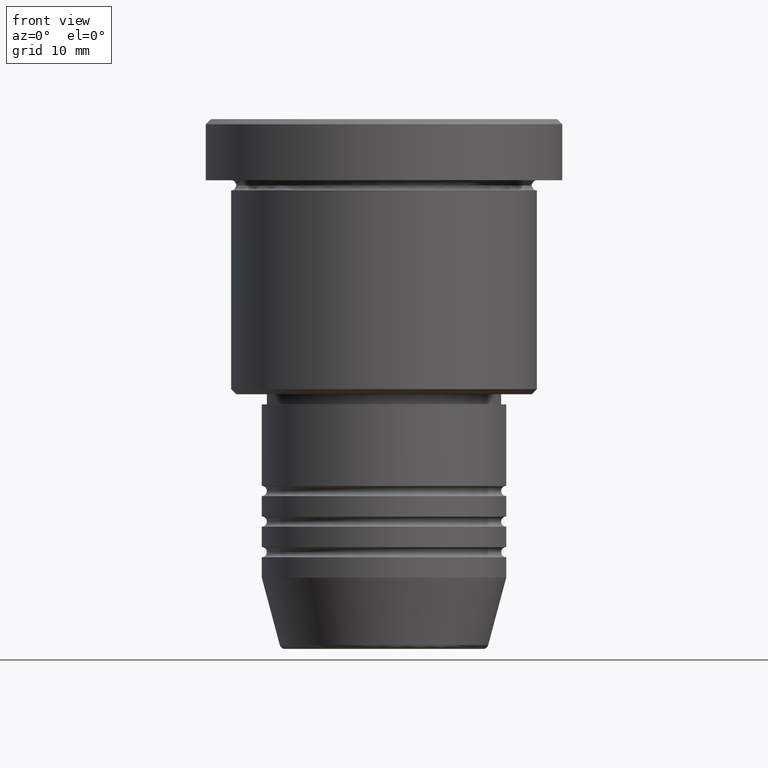
[diagram: clean part render]
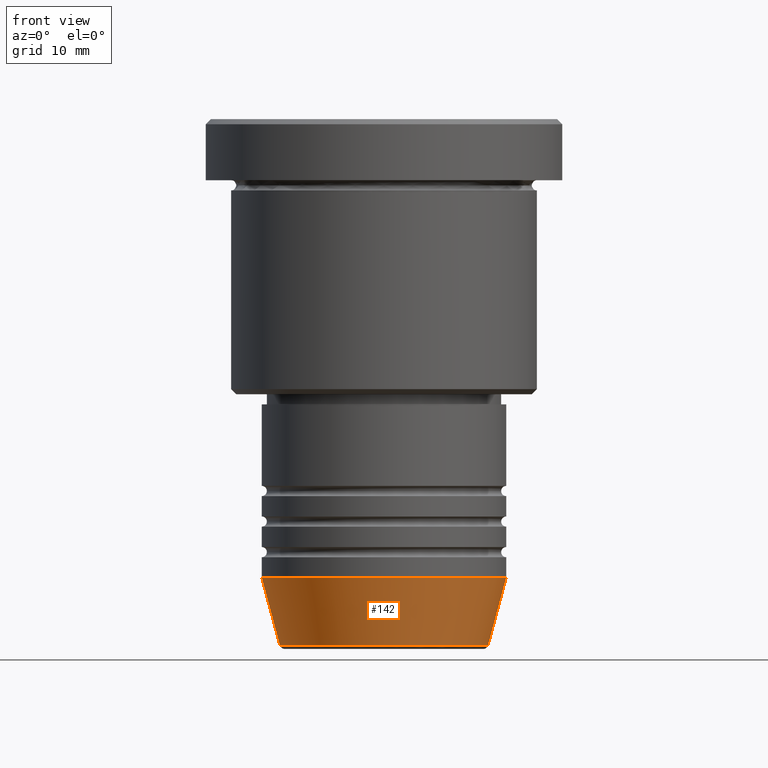
[diagram: same view with one face highlighted and labeled with its STEP entity id]
A machine part, front view. The second image highlights one B-rep face of the part: STEP entity #142.
In plain terms, the highlighted conical surface has half-angle 15 deg.
Its self-contained STEP definition (entity closure, byte-faithful):
#12 = ORIENTED_EDGE ( 'NONE', *, *, #193, .F. ) ;
#39 = DIRECTION ( 'NONE',  ( -0.000000000000000000, -0.000000000000000000, 1.000000000000000000 ) ) ;
#55 = LINE ( 'NONE', #686, #856 ) ;
#105 = ORIENTED_EDGE ( 'NONE', *, *, #173, .T. ) ;
#107 = CARTESIAN_POINT ( 'NONE',  ( 12.00000000000000000, 0.000000000000000000, -45.00000000000000000 ) ) ;
#123 = EDGE_LOOP ( 'NONE', ( #593, #105, #264, #12 ) ) ;
#142 = ADVANCED_FACE ( 'NONE', ( #788 ), #203, .T. ) ;
#165 = CIRCLE ( 'NONE', #325, 10.22365507213718949 ) ;
#173 = EDGE_CURVE ( 'NONE', #182, #606, #165, .T. ) ;
#182 = VERTEX_POINT ( 'NONE', #1040 ) ;
#193 = EDGE_CURVE ( 'NONE', #1146, #321, #421, .T. ) ;
#203 = CONICAL_SURFACE ( 'NONE', #925, 12.00000000000000000, 0.2617993877991500740 ) ;
#251 = CARTESIAN_POINT ( 'NONE',  ( 10.22365507213718949, 0.000000000000000000, -51.62940952255126348 ) ) ;
#264 = ORIENTED_EDGE ( 'NONE', *, *, #649, .T. ) ;
#287 = VECTOR ( 'NONE', #466, 1000.000000000000000 ) ;
#321 = VERTEX_POINT ( 'NONE', #1071 ) ;
#325 = AXIS2_PLACEMENT_3D ( 'NONE', #1150, #39, #870 ) ;
#338 = DIRECTION ( 'NONE',  ( -0.000000000000000000, -0.000000000000000000, 1.000000000000000000 ) ) ;
#421 = CIRCLE ( 'NONE', #813, 12.00000000000000000 ) ;
#429 = CARTESIAN_POINT ( 'NONE',  ( 0.000000000000000000, 0.000000000000000000, -45.00000000000000000 ) ) ;
#466 = DIRECTION ( 'NONE',  ( 0.2588190451025213501, 0.000000000000000000, 0.9659258262890680902 ) ) ;
#593 = ORIENTED_EDGE ( 'NONE', *, *, #1074, .F. ) ;
#606 = VERTEX_POINT ( 'NONE', #251 ) ;
#647 = CARTESIAN_POINT ( 'NONE',  ( -12.00000000000000000, 1.469576158976823947E-15, -45.00000000000000000 ) ) ;
#649 = EDGE_CURVE ( 'NONE', #606, #321, #1092, .T. ) ;
#686 = CARTESIAN_POINT ( 'NONE',  ( -12.00000000000000000, 1.469576158976823947E-15, -45.00000000000000000 ) ) ;
#689 = CARTESIAN_POINT ( 'NONE',  ( 0.000000000000000000, 0.000000000000000000, -45.00000000000000000 ) ) ;
#691 = DIRECTION ( 'NONE',  ( -0.2588190451025213501, 3.169619151431772337E-17, 0.9659258262890680902 ) ) ;
#693 = DIRECTION ( 'NONE',  ( 1.000000000000000000, 0.000000000000000000, 0.000000000000000000 ) ) ;
#788 = FACE_OUTER_BOUND ( 'NONE', #123, .T. ) ;
#813 = AXIS2_PLACEMENT_3D ( 'NONE', #429, #338, #693 ) ;
#856 = VECTOR ( 'NONE', #691, 1000.000000000000000 ) ;
#870 = DIRECTION ( 'NONE',  ( 1.000000000000000000, 0.000000000000000000, 0.000000000000000000 ) ) ;
#925 = AXIS2_PLACEMENT_3D ( 'NONE', #689, #1155, #1066 ) ;
#1040 = CARTESIAN_POINT ( 'NONE',  ( -10.22365507213718949, 1.360806402472382547E-15, -51.62940952255126348 ) ) ;
#1066 = DIRECTION ( 'NONE',  ( 1.000000000000000000, 0.000000000000000000, 0.000000000000000000 ) ) ;
#1071 = CARTESIAN_POINT ( 'NONE',  ( 12.00000000000000000, 0.000000000000000000, -45.00000000000000000 ) ) ;
#1074 = EDGE_CURVE ( 'NONE', #182, #1146, #55, .T. ) ;
#1092 = LINE ( 'NONE', #107, #287 ) ;
#1146 = VERTEX_POINT ( 'NONE', #647 ) ;
#1150 = CARTESIAN_POINT ( 'NONE',  ( 0.000000000000000000, 0.000000000000000000, -51.62940952255126348 ) ) ;
#1155 = DIRECTION ( 'NONE',  ( -0.000000000000000000, -0.000000000000000000, 1.000000000000000000 ) ) ;